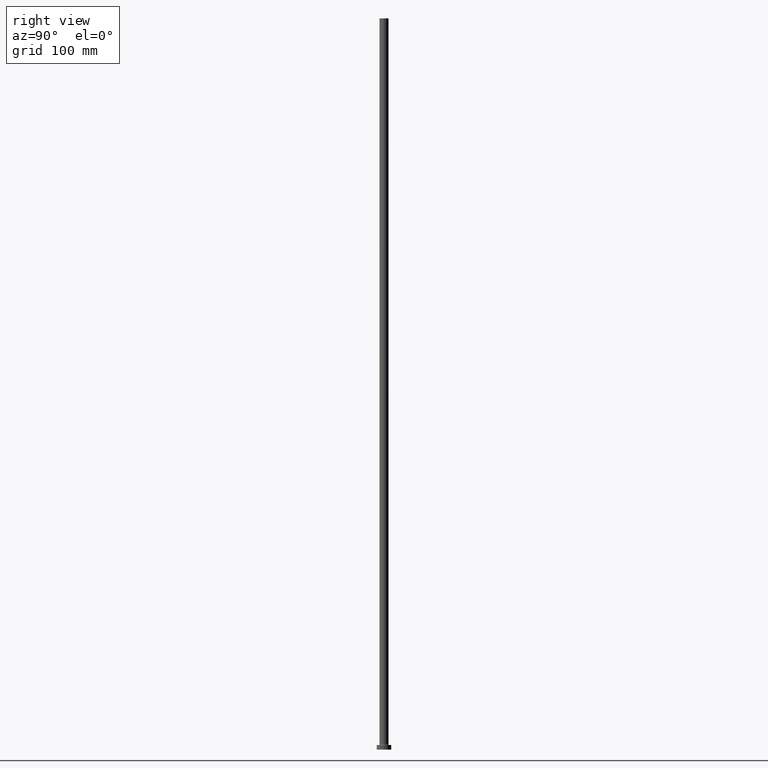
[diagram: clean part render]
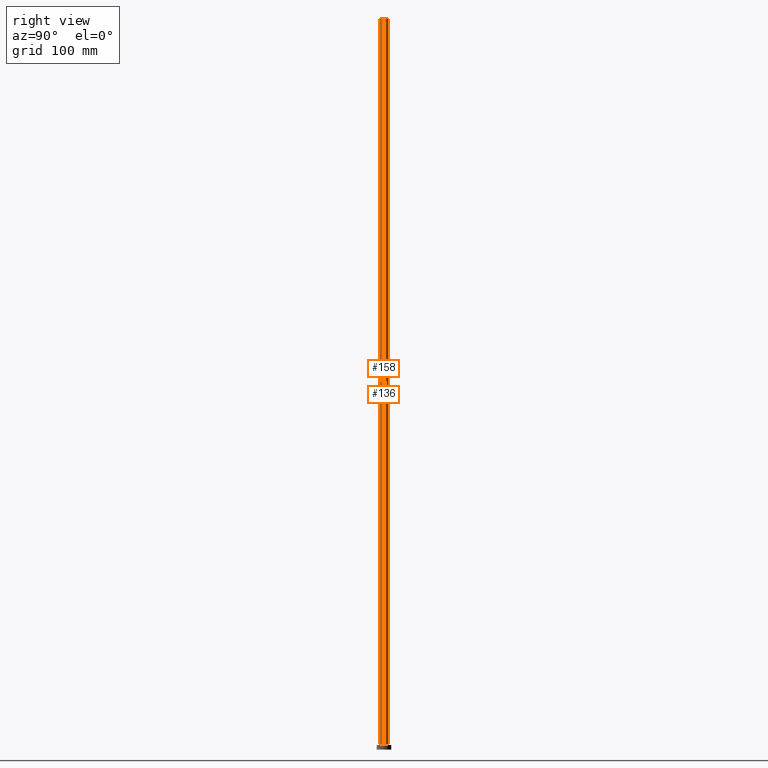
[diagram: same view with one multi-face feature highlighted, each face labeled with its STEP entity id]
A machine part, right view. The highlighted faces form ONE feature: a constant-radius fillet chain: 2 tangent blend faces with common blend radius 5 mm. The faces share edges in the B-rep.
Their STEP definitions:
[1] entity #136 (Cylinder):
#14 = CIRCLE ( 'NONE', #269, 5.000000000000000000 ) ;
#18 = EDGE_CURVE ( 'NONE', #132, #264, #14, .T. ) ;
#32 = FACE_OUTER_BOUND ( 'NONE', #442, .T. ) ;
#33 = DIRECTION ( 'NONE',  ( -0.000000000000000000, -0.000000000000000000, -1.000000000000000000 ) ) ;
#35 = EDGE_CURVE ( 'NONE', #132, #416, #338, .T. ) ;
#70 = DIRECTION ( 'NONE',  ( 0.000000000000000000, 0.000000000000000000, 1.000000000000000000 ) ) ;
#71 = ORIENTED_EDGE ( 'NONE', *, *, #18, .F. ) ;
#73 = VECTOR ( 'NONE', #185, 1000.000000000000000 ) ;
#87 = CIRCLE ( 'NONE', #311, 5.000000000000000000 ) ;
#132 = VERTEX_POINT ( 'NONE', #409 ) ;
#133 = DIRECTION ( 'NONE',  ( -0.000000000000000000, -0.000000000000000000, -1.000000000000000000 ) ) ;
#136 = ADVANCED_FACE ( 'NONE', ( #32 ), #169, .T. ) ;
#142 = CARTESIAN_POINT ( 'NONE',  ( -5.000000000000000000, 0.000000000000000000, 800.0000000000000000 ) ) ;
#150 = DIRECTION ( 'NONE',  ( 0.000000000000000000, 0.000000000000000000, 1.000000000000000000 ) ) ;
#160 = ORIENTED_EDGE ( 'NONE', *, *, #35, .T. ) ;
#169 = CYLINDRICAL_SURFACE ( 'NONE', #324, 5.000000000000000000 ) ;
#173 = EDGE_CURVE ( 'NONE', #264, #446, #430, .T. ) ;
#185 = DIRECTION ( 'NONE',  ( -0.000000000000000000, -0.000000000000000000, -1.000000000000000000 ) ) ;
#198 = ORIENTED_EDGE ( 'NONE', *, *, #173, .F. ) ;
#205 = CARTESIAN_POINT ( 'NONE',  ( 0.000000000000000000, 0.000000000000000000, 800.0000000000000000 ) ) ;
#237 = DIRECTION ( 'NONE',  ( 1.000000000000000000, 0.000000000000000000, 0.000000000000000000 ) ) ;
#264 = VERTEX_POINT ( 'NONE', #142 ) ;
#269 = AXIS2_PLACEMENT_3D ( 'NONE', #205, #70, #237 ) ;
#271 = DIRECTION ( 'NONE',  ( -1.000000000000000000, 0.000000000000000000, 0.000000000000000000 ) ) ;
#284 = EDGE_CURVE ( 'NONE', #416, #446, #87, .T. ) ;
#311 = AXIS2_PLACEMENT_3D ( 'NONE', #361, #150, #404 ) ;
#322 = CARTESIAN_POINT ( 'NONE',  ( -5.000000000000000000, 0.000000000000000000, 5.499999999999949374 ) ) ;
#324 = AXIS2_PLACEMENT_3D ( 'NONE', #448, #133, #271 ) ;
#338 = LINE ( 'NONE', #376, #394 ) ;
#346 = CARTESIAN_POINT ( 'NONE',  ( -5.000000000000000000, 0.000000000000000000, 800.0000000000000000 ) ) ;
#361 = CARTESIAN_POINT ( 'NONE',  ( 0.000000000000000000, 0.000000000000000000, 5.499999999999949374 ) ) ;
#369 = ORIENTED_EDGE ( 'NONE', *, *, #284, .T. ) ;
#376 = CARTESIAN_POINT ( 'NONE',  ( 5.000000000000000000, 6.123233995736766282E-16, 800.0000000000000000 ) ) ;
#394 = VECTOR ( 'NONE', #33, 1000.000000000000000 ) ;
#404 = DIRECTION ( 'NONE',  ( 1.000000000000000000, 0.000000000000000000, 0.000000000000000000 ) ) ;
#409 = CARTESIAN_POINT ( 'NONE',  ( 5.000000000000000000, 6.123233995736766282E-16, 800.0000000000000000 ) ) ;
#416 = VERTEX_POINT ( 'NONE', #434 ) ;
#430 = LINE ( 'NONE', #346, #73 ) ;
#434 = CARTESIAN_POINT ( 'NONE',  ( 5.000000000000000000, 6.123233995736766282E-16, 5.499999999999949374 ) ) ;
#442 = EDGE_LOOP ( 'NONE', ( #71, #160, #369, #198 ) ) ;
#446 = VERTEX_POINT ( 'NONE', #322 ) ;
#448 = CARTESIAN_POINT ( 'NONE',  ( 0.000000000000000000, 0.000000000000000000, 800.0000000000000000 ) ) ;
[2] entity #158 (Cylinder):
#1 = DIRECTION ( 'NONE',  ( 0.000000000000000000, 0.000000000000000000, 1.000000000000000000 ) ) ;
#21 = ORIENTED_EDGE ( 'NONE', *, *, #173, .T. ) ;
#33 = DIRECTION ( 'NONE',  ( -0.000000000000000000, -0.000000000000000000, -1.000000000000000000 ) ) ;
#35 = EDGE_CURVE ( 'NONE', #132, #416, #338, .T. ) ;
#54 = ORIENTED_EDGE ( 'NONE', *, *, #281, .F. ) ;
#73 = VECTOR ( 'NONE', #185, 1000.000000000000000 ) ;
#76 = DIRECTION ( 'NONE',  ( -1.000000000000000000, 0.000000000000000000, 0.000000000000000000 ) ) ;
#81 = FACE_OUTER_BOUND ( 'NONE', #408, .T. ) ;
#92 = DIRECTION ( 'NONE',  ( 0.000000000000000000, 0.000000000000000000, 1.000000000000000000 ) ) ;
#109 = CIRCLE ( 'NONE', #355, 5.000000000000000000 ) ;
#132 = VERTEX_POINT ( 'NONE', #409 ) ;
#142 = CARTESIAN_POINT ( 'NONE',  ( -5.000000000000000000, 0.000000000000000000, 800.0000000000000000 ) ) ;
#152 = DIRECTION ( 'NONE',  ( 1.000000000000000000, 0.000000000000000000, 0.000000000000000000 ) ) ;
#158 = ADVANCED_FACE ( 'NONE', ( #81 ), #352, .T. ) ;
#172 = ORIENTED_EDGE ( 'NONE', *, *, #35, .F. ) ;
#173 = EDGE_CURVE ( 'NONE', #264, #446, #430, .T. ) ;
#177 = DIRECTION ( 'NONE',  ( 1.000000000000000000, 0.000000000000000000, 0.000000000000000000 ) ) ;
#185 = DIRECTION ( 'NONE',  ( -0.000000000000000000, -0.000000000000000000, -1.000000000000000000 ) ) ;
#231 = EDGE_CURVE ( 'NONE', #446, #416, #109, .T. ) ;
#249 = CARTESIAN_POINT ( 'NONE',  ( 0.000000000000000000, 0.000000000000000000, 800.0000000000000000 ) ) ;
#254 = CIRCLE ( 'NONE', #276, 5.000000000000000000 ) ;
#264 = VERTEX_POINT ( 'NONE', #142 ) ;
#276 = AXIS2_PLACEMENT_3D ( 'NONE', #441, #92, #152 ) ;
#281 = EDGE_CURVE ( 'NONE', #264, #132, #254, .T. ) ;
#282 = DIRECTION ( 'NONE',  ( -0.000000000000000000, -0.000000000000000000, -1.000000000000000000 ) ) ;
#317 = CARTESIAN_POINT ( 'NONE',  ( 0.000000000000000000, 0.000000000000000000, 5.499999999999949374 ) ) ;
#322 = CARTESIAN_POINT ( 'NONE',  ( -5.000000000000000000, 0.000000000000000000, 5.499999999999949374 ) ) ;
#338 = LINE ( 'NONE', #376, #394 ) ;
#346 = CARTESIAN_POINT ( 'NONE',  ( -5.000000000000000000, 0.000000000000000000, 800.0000000000000000 ) ) ;
#352 = CYLINDRICAL_SURFACE ( 'NONE', #460, 5.000000000000000000 ) ;
#355 = AXIS2_PLACEMENT_3D ( 'NONE', #317, #1, #177 ) ;
#376 = CARTESIAN_POINT ( 'NONE',  ( 5.000000000000000000, 6.123233995736766282E-16, 800.0000000000000000 ) ) ;
#394 = VECTOR ( 'NONE', #33, 1000.000000000000000 ) ;
#408 = EDGE_LOOP ( 'NONE', ( #172, #54, #21, #445 ) ) ;
#409 = CARTESIAN_POINT ( 'NONE',  ( 5.000000000000000000, 6.123233995736766282E-16, 800.0000000000000000 ) ) ;
#416 = VERTEX_POINT ( 'NONE', #434 ) ;
#430 = LINE ( 'NONE', #346, #73 ) ;
#434 = CARTESIAN_POINT ( 'NONE',  ( 5.000000000000000000, 6.123233995736766282E-16, 5.499999999999949374 ) ) ;
#441 = CARTESIAN_POINT ( 'NONE',  ( 0.000000000000000000, 0.000000000000000000, 800.0000000000000000 ) ) ;
#445 = ORIENTED_EDGE ( 'NONE', *, *, #231, .T. ) ;
#446 = VERTEX_POINT ( 'NONE', #322 ) ;
#460 = AXIS2_PLACEMENT_3D ( 'NONE', #249, #282, #76 ) ;